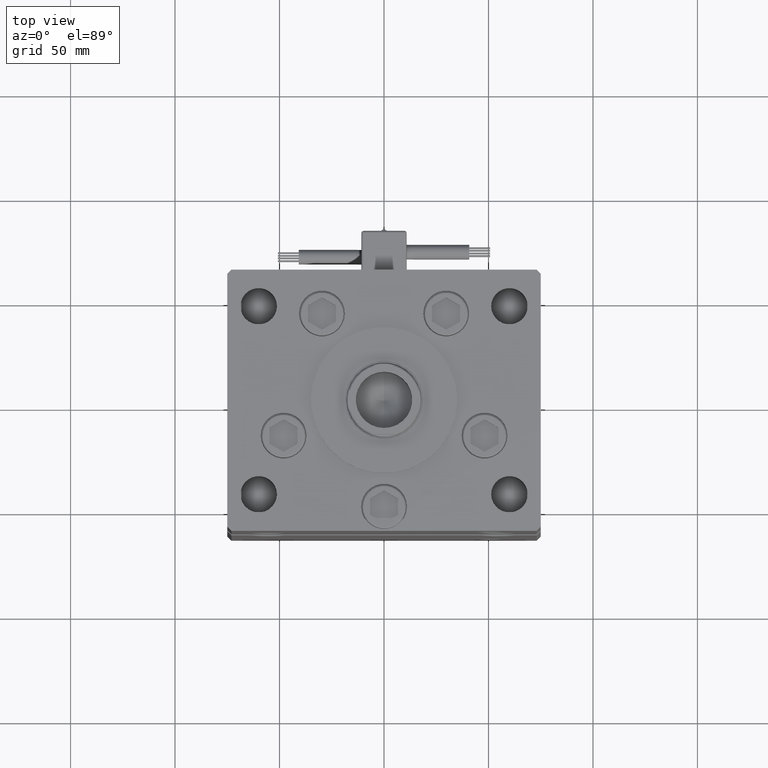
[diagram: clean part render]
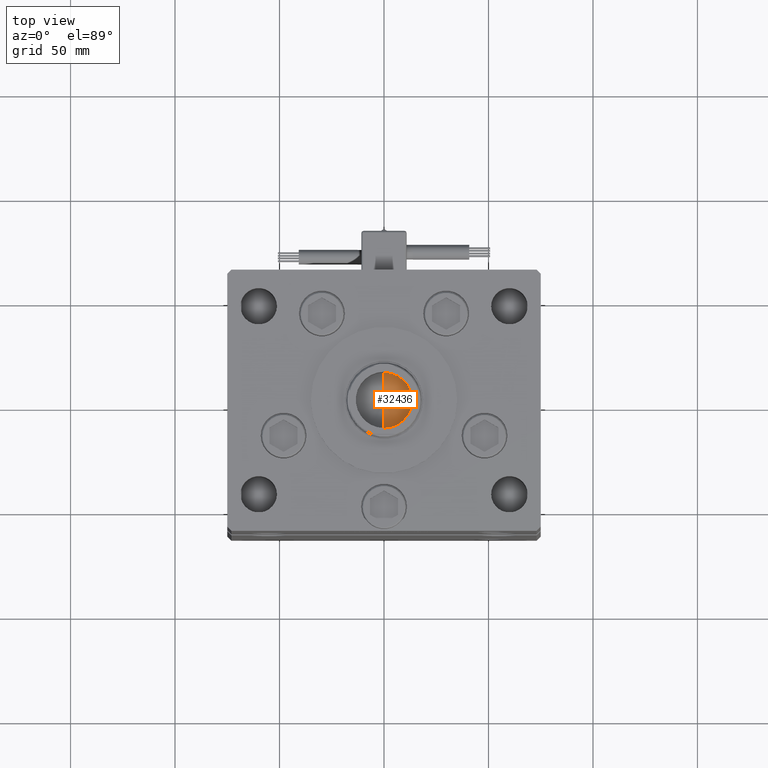
[diagram: same view with one face highlighted and labeled with its STEP entity id]
A machine part, top view. The second image highlights one B-rep face of the part: STEP entity #32436.
In plain terms, the highlighted conical surface has half-angle 59 deg.
Its self-contained STEP definition (entity closure, byte-faithful):
#470 = CARTESIAN_POINT ( 'NONE',  ( -30.50161835687206846, -7.088805540759547745E-15, 0.000000000000000000 ) ) ;
#1387 = CIRCLE ( 'NONE', #14016, 13.49999999999999467 ) ;
#2981 = DIRECTION ( 'NONE',  ( 0.000000000000000000, 0.000000000000000000, -1.000000000000000000 ) ) ;
#3852 = DIRECTION ( 'NONE',  ( 1.000000000000000000, -0.000000000000000000, -0.000000000000000000 ) ) ;
#4227 = EDGE_CURVE ( 'NONE', #38428, #15443, #26915, .T. ) ;
#7382 = ORIENTED_EDGE ( 'NONE', *, *, #48444, .F. ) ;
#14016 = AXIS2_PLACEMENT_3D ( 'NONE', #47513, #3852, #29496 ) ;
#15443 = VERTEX_POINT ( 'NONE', #21944 ) ;
#15914 = VECTOR ( 'NONE', #18521, 1000.000000000000000 ) ;
#18021 = CONICAL_SURFACE ( 'NONE', #37823, 13.49999999999999467, 1.029744258676653867 ) ;
#18521 = DIRECTION ( 'NONE',  ( 0.5150380749100547106, 1.049727191138618326E-16, 0.8571673007021120005 ) ) ;
#20083 = ORIENTED_EDGE ( 'NONE', *, *, #4227, .T. ) ;
#21944 = CARTESIAN_POINT ( 'NONE',  ( -22.39000000000000057, 0.000000000000000000, -13.49999999999999467 ) ) ;
#22681 = CARTESIAN_POINT ( 'NONE',  ( -22.39000000000000057, 0.000000000000000000, -13.49999999999999467 ) ) ;
#26915 = LINE ( 'NONE', #22681, #50990 ) ;
#29496 = DIRECTION ( 'NONE',  ( 0.000000000000000000, 0.000000000000000000, -1.000000000000000000 ) ) ;
#29540 = ORIENTED_EDGE ( 'NONE', *, *, #44764, .T. ) ;
#32436 = ADVANCED_FACE ( 'NONE', ( #33425 ), #18021, .F. ) ;
#33425 = FACE_OUTER_BOUND ( 'NONE', #51862, .T. ) ;
#35629 = DIRECTION ( 'NONE',  ( 0.5150380749100547106, 0.000000000000000000, -0.8571673007021120005 ) ) ;
#37204 = VERTEX_POINT ( 'NONE', #38864 ) ;
#37355 = CARTESIAN_POINT ( 'NONE',  ( -22.39000000000000057, 0.000000000000000000, 0.000000000000000000 ) ) ;
#37823 = AXIS2_PLACEMENT_3D ( 'NONE', #37355, #50906, #2981 ) ;
#38428 = VERTEX_POINT ( 'NONE', #470 ) ;
#38864 = CARTESIAN_POINT ( 'NONE',  ( -22.39000000000000057, 1.653273178848926275E-15, 13.49999999999999467 ) ) ;
#39675 = CARTESIAN_POINT ( 'NONE',  ( -22.39000000000000057, 1.653273178848926275E-15, 13.49999999999999467 ) ) ;
#44764 = EDGE_CURVE ( 'NONE', #15443, #37204, #1387, .T. ) ;
#47513 = CARTESIAN_POINT ( 'NONE',  ( -22.39000000000000057, 0.000000000000000000, 0.000000000000000000 ) ) ;
#47589 = LINE ( 'NONE', #39675, #15914 ) ;
#48444 = EDGE_CURVE ( 'NONE', #38428, #37204, #47589, .T. ) ;
#50906 = DIRECTION ( 'NONE',  ( 1.000000000000000000, -0.000000000000000000, -0.000000000000000000 ) ) ;
#50990 = VECTOR ( 'NONE', #35629, 1000.000000000000000 ) ;
#51862 = EDGE_LOOP ( 'NONE', ( #7382, #20083, #29540 ) ) ;